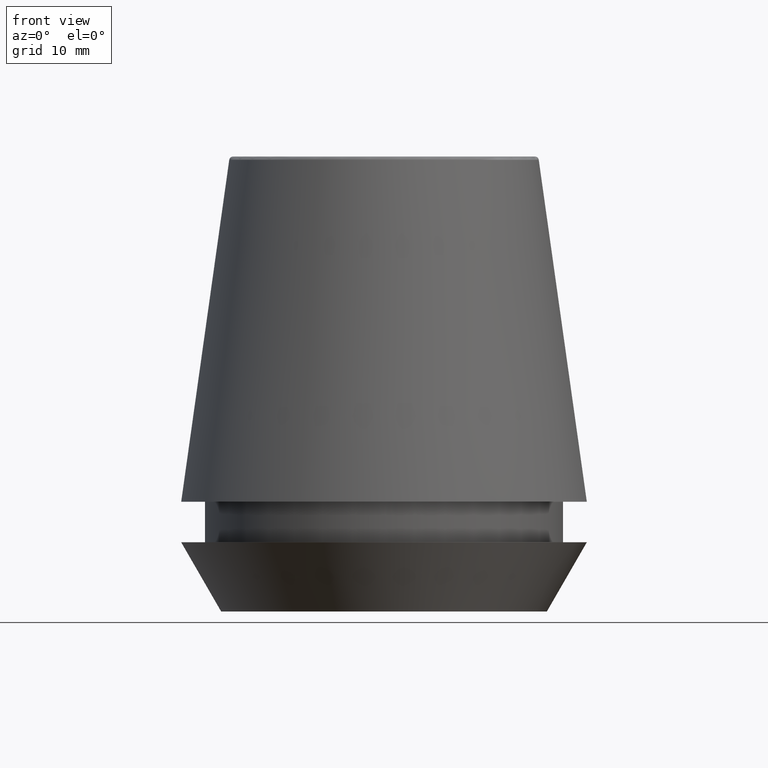
[diagram: clean part render]
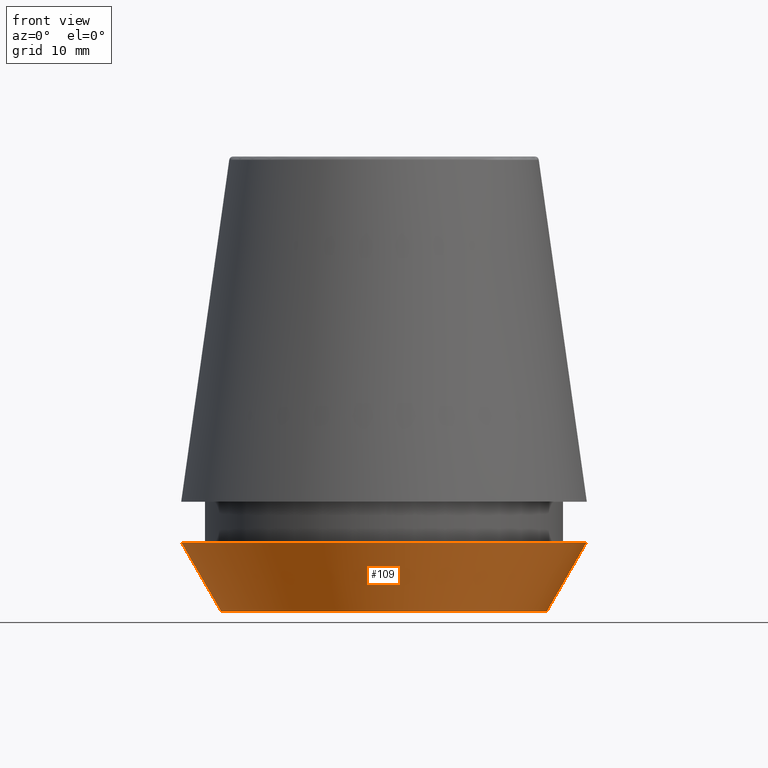
[diagram: same view with one face highlighted and labeled with its STEP entity id]
A machine part, front view. The second image highlights one B-rep face of the part: STEP entity #109.
In plain terms, the highlighted conical surface has half-angle 30 deg.
Its self-contained STEP definition (entity closure, byte-faithful):
#11 = CARTESIAN_POINT ( 'NONE',  ( 0.0000000000000000000, 0.0000000000000000000, 7.000000000000006200 ) ) ;
#13 = CARTESIAN_POINT ( 'NONE',  ( 0.0000000000000000000, 0.0000000000000000000, 0.0000000000000000000 ) ) ;
#31 = VERTEX_POINT ( 'NONE', #179 ) ;
#54 = CARTESIAN_POINT ( 'NONE',  ( -16.45854811567268100, 2.015590826847124800E-015, 0.0000000000000000000 ) ) ;
#56 = DIRECTION ( 'NONE',  ( 0.4999999999999941700, 0.0000000000000000000, 0.8660254037844420400 ) ) ;
#72 = AXIS2_PLACEMENT_3D ( 'NONE', #123, #373, #120 ) ;
#82 = AXIS2_PLACEMENT_3D ( 'NONE', #13, #229, #277 ) ;
#91 = ORIENTED_EDGE ( 'NONE', *, *, #298, .F. ) ;
#102 = VECTOR ( 'NONE', #56, 1000.000000000000000 ) ;
#109 = ADVANCED_FACE ( 'NONE', ( #170 ), #186, .T. ) ;
#113 = DIRECTION ( 'NONE',  ( 1.000000000000000000, 0.0000000000000000000, 0.0000000000000000000 ) ) ;
#120 = DIRECTION ( 'NONE',  ( 1.000000000000000000, 0.0000000000000000000, 0.0000000000000000000 ) ) ;
#123 = CARTESIAN_POINT ( 'NONE',  ( 0.0000000000000000000, 0.0000000000000000000, 0.0000000000000000000 ) ) ;
#124 = CARTESIAN_POINT ( 'NONE',  ( -20.50000000000000000, 2.510525938252074100E-015, 7.000000000000006200 ) ) ;
#126 = ORIENTED_EDGE ( 'NONE', *, *, #318, .T. ) ;
#137 = ORIENTED_EDGE ( 'NONE', *, *, #236, .T. ) ;
#138 = VERTEX_POINT ( 'NONE', #238 ) ;
#142 = VERTEX_POINT ( 'NONE', #124 ) ;
#168 = EDGE_CURVE ( 'NONE', #142, #31, #275, .T. ) ;
#170 = FACE_OUTER_BOUND ( 'NONE', #177, .T. ) ;
#174 = AXIS2_PLACEMENT_3D ( 'NONE', #11, #202, #113 ) ;
#177 = EDGE_LOOP ( 'NONE', ( #91, #137, #126, #319 ) ) ;
#179 = CARTESIAN_POINT ( 'NONE',  ( 20.50000000000000000, 0.0000000000000000000, 7.000000000000006200 ) ) ;
#186 = CONICAL_SURFACE ( 'NONE', #72, 16.45854811567268100, 0.5235987755982921500 ) ;
#202 = DIRECTION ( 'NONE',  ( -0.0000000000000000000, -0.0000000000000000000, 1.000000000000000000 ) ) ;
#212 = LINE ( 'NONE', #244, #102 ) ;
#216 = DIRECTION ( 'NONE',  ( -0.4999999999999941700, 6.123233995736694500E-017, 0.8660254037844420400 ) ) ;
#217 = VERTEX_POINT ( 'NONE', #351 ) ;
#221 = LINE ( 'NONE', #54, #361 ) ;
#229 = DIRECTION ( 'NONE',  ( -0.0000000000000000000, -0.0000000000000000000, 1.000000000000000000 ) ) ;
#236 = EDGE_CURVE ( 'NONE', #138, #217, #354, .T. ) ;
#238 = CARTESIAN_POINT ( 'NONE',  ( -16.45854811567268100, 2.263058382549599700E-015, 0.0000000000000000000 ) ) ;
#244 = CARTESIAN_POINT ( 'NONE',  ( 16.45854811567268100, 0.0000000000000000000, 0.0000000000000000000 ) ) ;
#275 = CIRCLE ( 'NONE', #174, 20.50000000000000000 ) ;
#277 = DIRECTION ( 'NONE',  ( 1.000000000000000000, 0.0000000000000000000, 0.0000000000000000000 ) ) ;
#298 = EDGE_CURVE ( 'NONE', #138, #142, #221, .T. ) ;
#318 = EDGE_CURVE ( 'NONE', #217, #31, #212, .T. ) ;
#319 = ORIENTED_EDGE ( 'NONE', *, *, #168, .F. ) ;
#351 = CARTESIAN_POINT ( 'NONE',  ( 16.45854811567268100, 0.0000000000000000000, 0.0000000000000000000 ) ) ;
#354 = CIRCLE ( 'NONE', #82, 16.45854811567268100 ) ;
#361 = VECTOR ( 'NONE', #216, 1000.000000000000000 ) ;
#373 = DIRECTION ( 'NONE',  ( -0.0000000000000000000, -0.0000000000000000000, 1.000000000000000000 ) ) ;